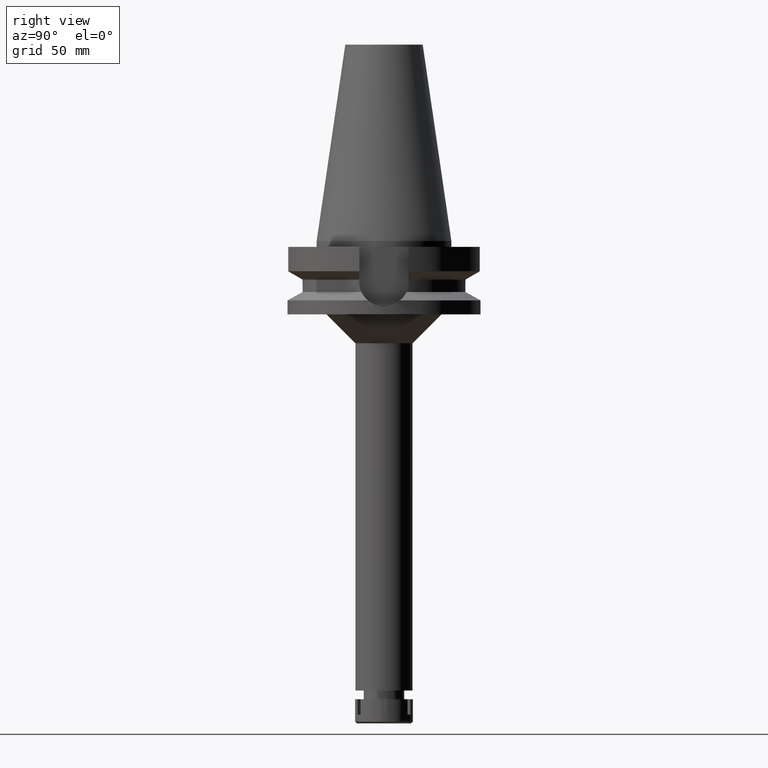
[diagram: clean part render]
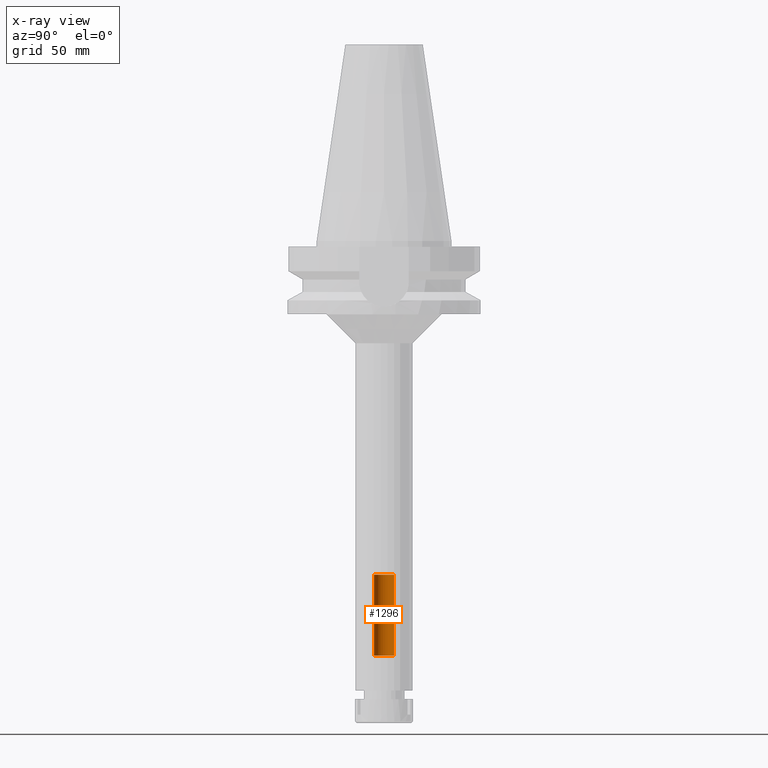
[diagram: x-ray — body ghosted, one internal face saturated and labeled with its STEP entity id]
A machine part, right view, then the same camera in x-ray: the body is ghosted and one INTERNAL B-rep face — a face not visible from any outside direction — is saturated and labeled: STEP entity #1296.
In plain terms, the highlighted cylindrical surface (edge-blend (fillet) strip) has radius 5.2 mm, axis along (0, 0, -1).
Its self-contained STEP definition (entity closure, byte-faithful):
#7 = CARTESIAN_POINT ( 'NONE',  ( 0.0000000000000000000, 2.682466348851999684E-14, -215.0000000000000000 ) ) ;
#27 = AXIS2_PLACEMENT_3D ( 'NONE', #2156, #1559, #2387 ) ;
#158 = ORIENTED_EDGE ( 'NONE', *, *, #1538, .T. ) ;
#165 = FACE_OUTER_BOUND ( 'NONE', #1557, .T. ) ;
#373 = CARTESIAN_POINT ( 'NONE',  ( 0.0000000000000000000, 5.200000000000000178, -215.0000000000000000 ) ) ;
#501 = ORIENTED_EDGE ( 'NONE', *, *, #1580, .F. ) ;
#724 = LINE ( 'NONE', #3551, #1694 ) ;
#959 = DIRECTION ( 'NONE',  ( 0.0000000000000000000, 1.000000000000000000, 0.0000000000000000000 ) ) ;
#1112 = DIRECTION ( 'NONE',  ( 0.0000000000000000000, 0.0000000000000000000, -1.000000000000000000 ) ) ;
#1189 = ORIENTED_EDGE ( 'NONE', *, *, #1800, .T. ) ;
#1296 = ADVANCED_FACE ( 'NONE', ( #165 ), #3503, .F. ) ;
#1339 = AXIS2_PLACEMENT_3D ( 'NONE', #3463, #2068, #959 ) ;
#1363 = DIRECTION ( 'NONE',  ( 0.0000000000000000000, 0.0000000000000000000, 1.000000000000000000 ) ) ;
#1364 = EDGE_CURVE ( 'NONE', #1724, #3150, #724, .T. ) ;
#1398 = CIRCLE ( 'NONE', #2519, 5.200000000000000178 ) ;
#1538 = EDGE_CURVE ( 'NONE', #2374, #1724, #1398, .T. ) ;
#1557 = EDGE_LOOP ( 'NONE', ( #1189, #501, #158, #2547 ) ) ;
#1559 = DIRECTION ( 'NONE',  ( 0.0000000000000000000, 0.0000000000000000000, -1.000000000000000000 ) ) ;
#1561 = CARTESIAN_POINT ( 'NONE',  ( 0.0000000000000000000, 5.200000000000000178, -173.0000000000000000 ) ) ;
#1580 = EDGE_CURVE ( 'NONE', #2374, #2441, #3370, .T. ) ;
#1663 = CARTESIAN_POINT ( 'NONE',  ( 0.0000000000000000000, -5.200000000000000178, -215.0000000000000000 ) ) ;
#1694 = VECTOR ( 'NONE', #1832, 1000.000000000000000 ) ;
#1724 = VERTEX_POINT ( 'NONE', #373 ) ;
#1800 = EDGE_CURVE ( 'NONE', #3150, #2441, #3166, .T. ) ;
#1832 = DIRECTION ( 'NONE',  ( 0.0000000000000000000, 0.0000000000000000000, 1.000000000000000000 ) ) ;
#2068 = DIRECTION ( 'NONE',  ( 0.0000000000000000000, 0.0000000000000000000, 1.000000000000000000 ) ) ;
#2156 = CARTESIAN_POINT ( 'NONE',  ( 0.0000000000000000000, 2.682466348851999684E-14, 119.0400000000000063 ) ) ;
#2374 = VERTEX_POINT ( 'NONE', #1663 ) ;
#2387 = DIRECTION ( 'NONE',  ( 0.0000000000000000000, -1.000000000000000000, 0.0000000000000000000 ) ) ;
#2441 = VERTEX_POINT ( 'NONE', #3019 ) ;
#2519 = AXIS2_PLACEMENT_3D ( 'NONE', #7, #1112, #2747 ) ;
#2547 = ORIENTED_EDGE ( 'NONE', *, *, #1364, .T. ) ;
#2694 = VECTOR ( 'NONE', #1363, 1000.000000000000000 ) ;
#2747 = DIRECTION ( 'NONE',  ( 0.0000000000000000000, -1.000000000000000000, 0.0000000000000000000 ) ) ;
#3010 = CARTESIAN_POINT ( 'NONE',  ( 0.0000000000000000000, -5.200000000000000178, -215.0000000000000000 ) ) ;
#3019 = CARTESIAN_POINT ( 'NONE',  ( 0.0000000000000000000, -5.200000000000000178, -173.0000000000000000 ) ) ;
#3150 = VERTEX_POINT ( 'NONE', #1561 ) ;
#3166 = CIRCLE ( 'NONE', #1339, 5.200000000000000178 ) ;
#3370 = LINE ( 'NONE', #3010, #2694 ) ;
#3463 = CARTESIAN_POINT ( 'NONE',  ( 0.0000000000000000000, 2.682466348851999684E-14, -173.0000000000000000 ) ) ;
#3503 = CYLINDRICAL_SURFACE ( 'NONE', #27, 5.200000000000000178 ) ;
#3551 = CARTESIAN_POINT ( 'NONE',  ( 0.0000000000000000000, 5.200000000000000178, -215.0000000000000000 ) ) ;